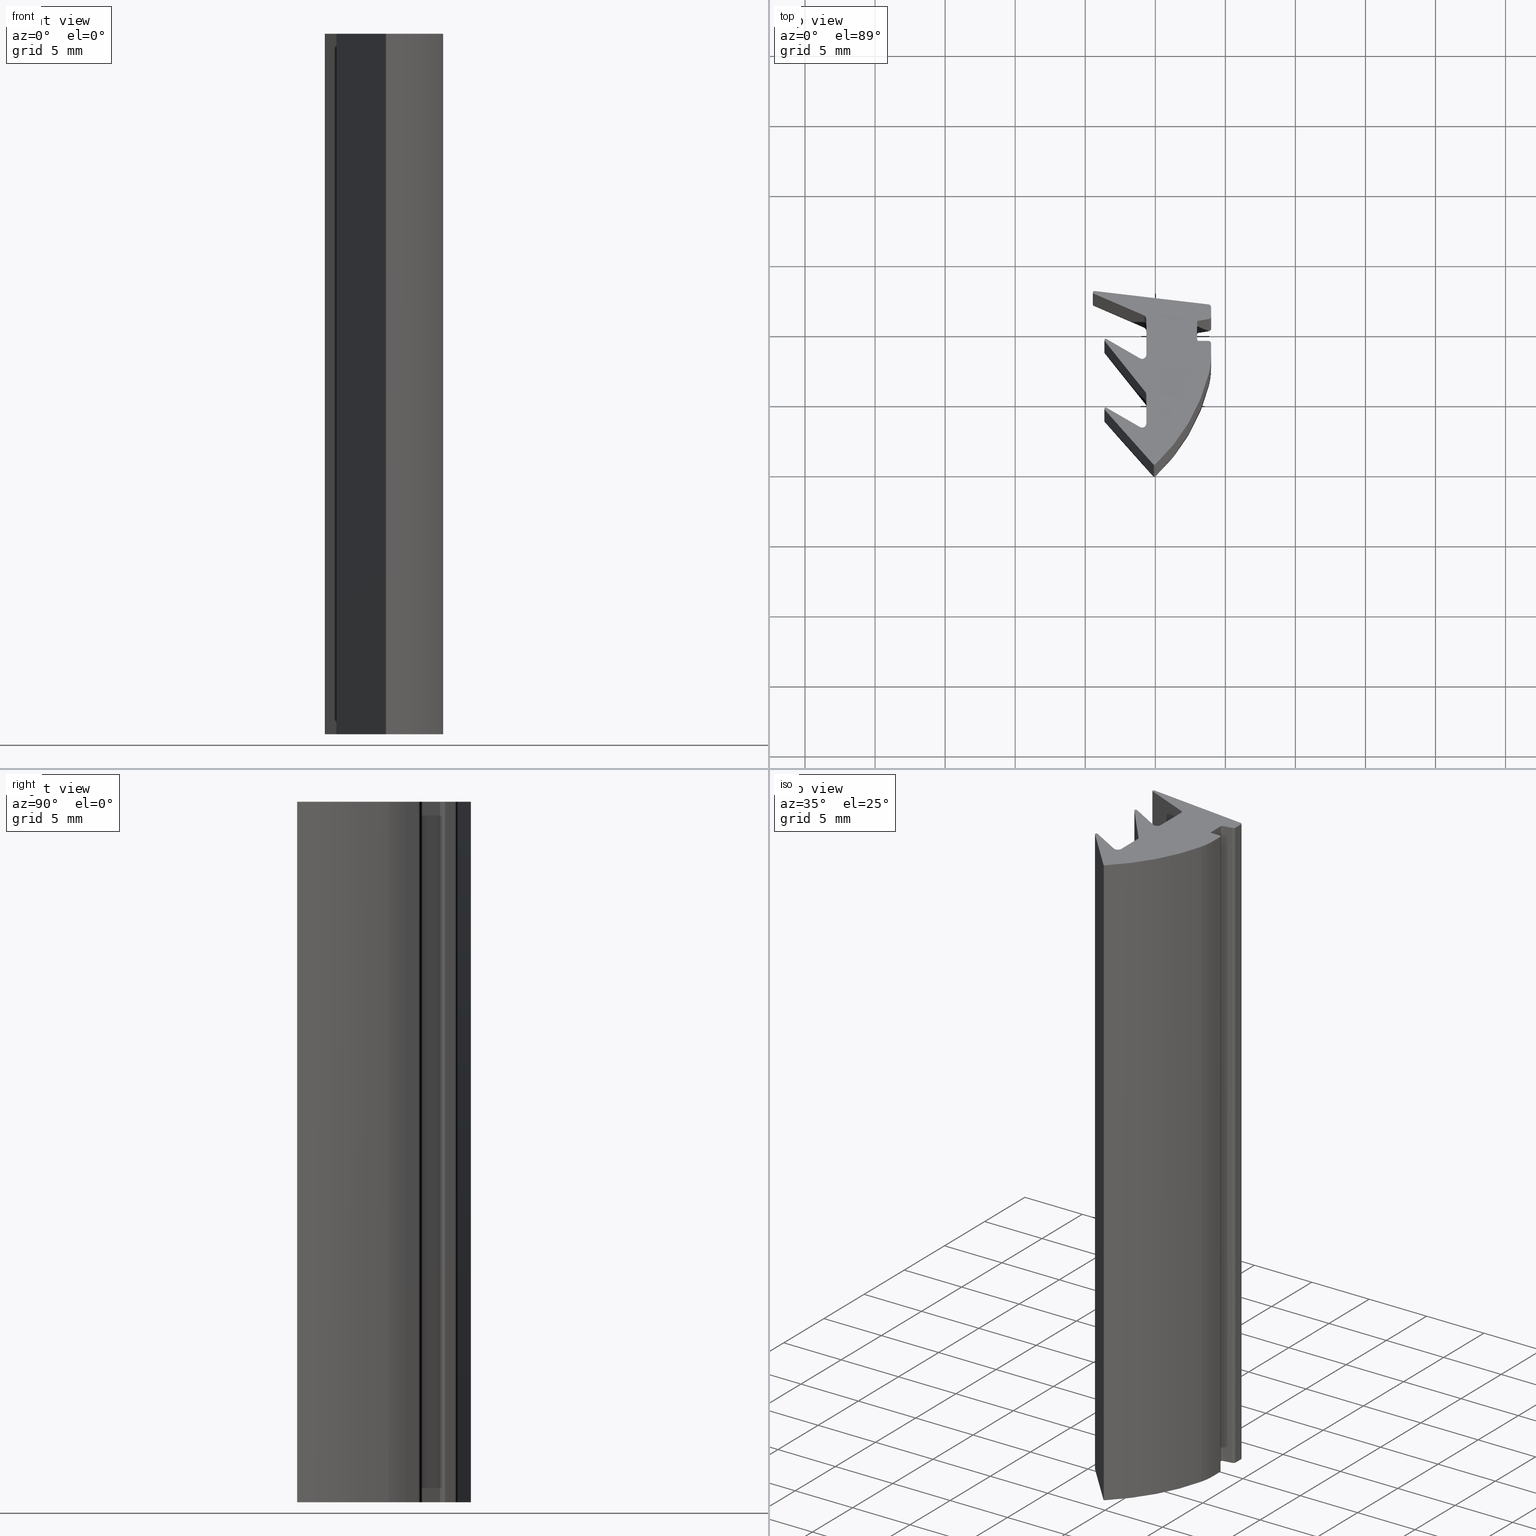
[diagram: canonical four-view strip — front | top / right | iso, engineering-drawing reading convention]
A machine part, canonical four-view strip (front | top / right | iso — engineering-drawing reading convention). The complete STEP part file that produces these views, byte-faithful:
ISO-10303-21;
HEADER;
/****************************************************************
 * Generated by software with PDE/Lib inside                    *
 * PDElib Version v4.4, created Mon 02/23/2004                  *
 * International Technegroup Inc. (www.iti-oh.com)              *
 ****************************************************************/
FILE_DESCRIPTION(('STEP AP203'),'2;1');
FILE_NAME('21.053.00N.stp','2011-03-21T16:06:39',(''),(''),'2009.3.110','THINKDESIGN','');
FILE_SCHEMA(('CONFIG_CONTROL_DESIGN'));
ENDSEC;
DATA;
#2=CARTESIAN_POINT('',(-0.068392333757039,0.072955388308102,0.0));
#3=DIRECTION('',(0.0,0.0,1.0));
#4=DIRECTION('',(-0.746680531136745,-0.665182820299313,0.0));
#5=AXIS2_PLACEMENT_3D('',#2,#3,#4);
#6=CYLINDRICAL_SURFACE('',#5,0.099999999999601);
#7=CARTESIAN_POINT('',(-0.143060386870415,0.006437106278437,0.0));
#8=VERTEX_POINT('',#7);
#9=CARTESIAN_POINT('',(0.0,0.0,0.0));
#10=VERTEX_POINT('',#9);
#11=CARTESIAN_POINT('',(-0.068392333757039,0.072955388308102,0.0));
#12=DIRECTION('',(0.0,0.0,1.0));
#13=DIRECTION('',(-0.746680531136745,-0.665182820299313,0.0));
#14=AXIS2_PLACEMENT_3D('',#11,#12,#13);
#15=CIRCLE('',#14,0.099999999999601);
#16=EDGE_CURVE('',#8,#10,#15,.T.);
#17=ORIENTED_EDGE('',*,*,#16,.T.);
#18=CARTESIAN_POINT('',(0.0,0.0,50.0));
#19=VERTEX_POINT('',#18);
#20=CARTESIAN_POINT('',(0.0,0.0,0.0));
#21=DIRECTION('',(0.0,0.0,1.0));
#22=VECTOR('',#21,50.0);
#23=LINE('',#20,#22);
#24=EDGE_CURVE('',#10,#19,#23,.T.);
#25=ORIENTED_EDGE('',*,*,#24,.T.);
#26=CARTESIAN_POINT('',(-0.143060386870415,0.006437106278437,50.0));
#27=VERTEX_POINT('',#26);
#28=CARTESIAN_POINT('',(-0.068392333757039,0.072955388308102,50.0));
#29=DIRECTION('',(0.0,0.0,1.0));
#30=DIRECTION('',(-0.746680531136745,-0.665182820299313,0.0));
#31=AXIS2_PLACEMENT_3D('',#28,#29,#30);
#32=CIRCLE('',#31,0.099999999999601);
#33=EDGE_CURVE('',#27,#19,#32,.T.);
#34=ORIENTED_EDGE('',*,*,#33,.F.);
#35=CARTESIAN_POINT('',(-0.143060386870415,0.006437106278437,0.0));
#36=DIRECTION('',(0.0,0.0,1.0));
#37=VECTOR('',#36,50.0);
#38=LINE('',#35,#37);
#39=EDGE_CURVE('',#8,#27,#38,.T.);
#40=ORIENTED_EDGE('',*,*,#39,.F.);
#41=EDGE_LOOP('',(#17,#25,#34,#40));
#42=FACE_OUTER_BOUND('',#41,.T.);
#43=ADVANCED_FACE('',(#42),#6,.T.);
#44=CARTESIAN_POINT('',(-9.162286141764792,9.773582893612812,0.0));
#45=DIRECTION('',(0.0,0.0,1.0));
#46=DIRECTION('',(0.683923337573304,-0.729553883083760,0.0));
#47=AXIS2_PLACEMENT_3D('',#44,#45,#46);
#48=CYLINDRICAL_SURFACE('',#47,13.396656669553645);
#49=CARTESIAN_POINT('',(3.824155342394557,6.483788447085610,0.0));
#50=VERTEX_POINT('',#49);
#51=CARTESIAN_POINT('',(-9.162286141764792,9.773582893612812,0.0));
#52=DIRECTION('',(0.0,0.0,1.0));
#53=DIRECTION('',(0.683923337573304,-0.729553883083760,0.0));
#54=AXIS2_PLACEMENT_3D('',#51,#52,#53);
#55=CIRCLE('',#54,13.396656669553645);
#56=EDGE_CURVE('',#10,#50,#55,.T.);
#57=ORIENTED_EDGE('',*,*,#56,.T.);
#58=CARTESIAN_POINT('',(3.824155342394557,6.483788447085610,50.0));
#59=VERTEX_POINT('',#58);
#60=CARTESIAN_POINT('',(3.824155342394557,6.483788447085610,0.0));
#61=DIRECTION('',(0.0,0.0,1.0));
#62=VECTOR('',#61,50.0);
#63=LINE('',#60,#62);
#64=EDGE_CURVE('',#50,#59,#63,.T.);
#65=ORIENTED_EDGE('',*,*,#64,.T.);
#66=CARTESIAN_POINT('',(-9.162286141764792,9.773582893612812,50.0));
#67=DIRECTION('',(0.0,0.0,1.0));
#68=DIRECTION('',(0.683923337573304,-0.729553883083760,0.0));
#69=AXIS2_PLACEMENT_3D('',#66,#67,#68);
#70=CIRCLE('',#69,13.396656669553645);
#71=EDGE_CURVE('',#19,#59,#70,.T.);
#72=ORIENTED_EDGE('',*,*,#71,.F.);
#73=ORIENTED_EDGE('',*,*,#24,.F.);
#74=EDGE_LOOP('',(#57,#65,#72,#73));
#75=FACE_OUTER_BOUND('',#74,.T.);
#76=ADVANCED_FACE('',(#75),#48,.T.);
#77=CARTESIAN_POINT('',(-1.155222494464720,7.745190931734269,0.0));
#78=DIRECTION('',(0.0,0.0,1.0));
#79=DIRECTION('',(0.969379286525517,-0.245568318101663,0.0));
#80=AXIS2_PLACEMENT_3D('',#77,#78,#79);
#81=CYLINDRICAL_SURFACE('',#80,5.136666221440048);
#82=CARTESIAN_POINT('',(3.981443726975328,7.745190931734234,0.0));
#83=VERTEX_POINT('',#82);
#84=CARTESIAN_POINT('',(-1.155222494464720,7.745190931734270,0.0));
#85=DIRECTION('',(0.0,0.0,1.0));
#86=DIRECTION('',(0.969379286525517,-0.245568318101663,0.0));
#87=AXIS2_PLACEMENT_3D('',#84,#85,#86);
#88=CIRCLE('',#87,5.136666221440048);
#89=EDGE_CURVE('',#50,#83,#88,.T.);
#90=ORIENTED_EDGE('',*,*,#89,.T.);
#91=CARTESIAN_POINT('',(3.981443726975328,7.745190931734234,50.0));
#92=VERTEX_POINT('',#91);
#93=CARTESIAN_POINT('',(3.981443726975328,7.745190931734234,0.0));
#94=DIRECTION('',(0.0,0.0,1.0));
#95=VECTOR('',#94,50.0);
#96=LINE('',#93,#95);
#97=EDGE_CURVE('',#83,#92,#96,.T.);
#98=ORIENTED_EDGE('',*,*,#97,.T.);
#99=CARTESIAN_POINT('',(-1.155222494464720,7.745190931734270,50.0));
#100=DIRECTION('',(0.0,0.0,1.0));
#101=DIRECTION('',(0.969379286525517,-0.245568318101663,0.0));
#102=AXIS2_PLACEMENT_3D('',#99,#100,#101);
#103=CIRCLE('',#102,5.136666221440048);
#104=EDGE_CURVE('',#59,#92,#103,.T.);
#105=ORIENTED_EDGE('',*,*,#104,.F.);
#106=ORIENTED_EDGE('',*,*,#64,.F.);
#107=EDGE_LOOP('',(#90,#98,#105,#106));
#108=FACE_OUTER_BOUND('',#107,.T.);
#109=ADVANCED_FACE('',(#108),#81,.T.);
#110=CARTESIAN_POINT('',(3.981443726975328,7.745190931734234,0.0));
#111=DIRECTION('',(1.0,0.0,0.0));
#112=DIRECTION('',(0.0,1.0,0.0));
#113=AXIS2_PLACEMENT_3D('',#110,#111,#112);
#114=PLANE('',#113);
#115=CARTESIAN_POINT('',(3.981443726975328,8.621382036563954,0.0));
#116=VERTEX_POINT('',#115);
#117=CARTESIAN_POINT('',(3.981443726975328,7.745190931734234,0.0));
#118=DIRECTION('',(0.0,1.0,0.0));
#119=VECTOR('',#118,0.876191104829720);
#120=LINE('',#117,#119);
#121=EDGE_CURVE('',#83,#116,#120,.T.);
#122=ORIENTED_EDGE('',*,*,#121,.T.);
#123=CARTESIAN_POINT('',(3.981443726975328,8.621382036563954,50.0));
#124=VERTEX_POINT('',#123);
#125=CARTESIAN_POINT('',(3.981443726975328,8.621382036563954,0.0));
#126=DIRECTION('',(0.0,0.0,1.0));
#127=VECTOR('',#126,50.0);
#128=LINE('',#125,#127);
#129=EDGE_CURVE('',#116,#124,#128,.T.);
#130=ORIENTED_EDGE('',*,*,#129,.T.);
#131=CARTESIAN_POINT('',(3.981443726975328,7.745190931734234,50.0));
#132=DIRECTION('',(0.0,1.0,0.0));
#133=VECTOR('',#132,0.876191104829720);
#134=LINE('',#131,#133);
#135=EDGE_CURVE('',#92,#124,#134,.T.);
#136=ORIENTED_EDGE('',*,*,#135,.F.);
#137=ORIENTED_EDGE('',*,*,#97,.F.);
#138=EDGE_LOOP('',(#122,#130,#136,#137));
#139=FACE_OUTER_BOUND('',#138,.T.);
#140=ADVANCED_FACE('',(#139),#114,.T.);
#141=CARTESIAN_POINT('',(3.781443726976129,8.621382036563954,0.0));
#142=DIRECTION('',(0.0,0.0,1.0));
#143=DIRECTION('',(1.0,0.0,0.0));
#144=AXIS2_PLACEMENT_3D('',#141,#142,#143);
#145=CYLINDRICAL_SURFACE('',#144,0.199999999999199);
#146=CARTESIAN_POINT('',(3.781443726976127,8.821382036563154,0.0));
#147=VERTEX_POINT('',#146);
#148=CARTESIAN_POINT('',(3.781443726976129,8.621382036563954,0.0));
#149=DIRECTION('',(0.0,0.0,1.0));
#150=DIRECTION('',(1.0,0.0,0.0));
#151=AXIS2_PLACEMENT_3D('',#148,#149,#150);
#152=CIRCLE('',#151,0.199999999999199);
#153=EDGE_CURVE('',#116,#147,#152,.T.);
#154=ORIENTED_EDGE('',*,*,#153,.T.);
#155=CARTESIAN_POINT('',(3.781443726976127,8.821382036563154,50.0));
#156=VERTEX_POINT('',#155);
#157=CARTESIAN_POINT('',(3.781443726976127,8.821382036563154,0.0));
#158=DIRECTION('',(0.0,0.0,1.0));
#159=VECTOR('',#158,50.0);
#160=LINE('',#157,#159);
#161=EDGE_CURVE('',#147,#156,#160,.T.);
#162=ORIENTED_EDGE('',*,*,#161,.T.);
#163=CARTESIAN_POINT('',(3.781443726976129,8.621382036563954,50.0));
#164=DIRECTION('',(0.0,0.0,1.0));
#165=DIRECTION('',(1.0,0.0,0.0));
#166=AXIS2_PLACEMENT_3D('',#163,#164,#165);
#167=CIRCLE('',#166,0.199999999999199);
#168=EDGE_CURVE('',#124,#156,#167,.T.);
#169=ORIENTED_EDGE('',*,*,#168,.F.);
#170=ORIENTED_EDGE('',*,*,#129,.F.);
#171=EDGE_LOOP('',(#154,#162,#169,#170));
#172=FACE_OUTER_BOUND('',#171,.T.);
#173=ADVANCED_FACE('',(#172),#145,.T.);
#174=CARTESIAN_POINT('',(3.781443726976127,8.821382036563154,0.0));
#175=DIRECTION('',(0.0,1.0,0.0));
#176=DIRECTION('',(-1.0,0.0,0.0));
#177=AXIS2_PLACEMENT_3D('',#174,#175,#176);
#178=PLANE('',#177);
#179=CARTESIAN_POINT('',(3.087680067649842,8.821382036563154,0.0));
#180=VERTEX_POINT('',#179);
#181=CARTESIAN_POINT('',(3.781443726976127,8.821382036563154,0.0));
#182=DIRECTION('',(-1.0,0.0,0.0));
#183=VECTOR('',#182,0.693763659326284);
#184=LINE('',#181,#183);
#185=EDGE_CURVE('',#147,#180,#184,.T.);
#186=ORIENTED_EDGE('',*,*,#185,.T.);
#187=CARTESIAN_POINT('',(3.087680067649842,8.821382036563154,50.0));
#188=VERTEX_POINT('',#187);
#189=CARTESIAN_POINT('',(3.087680067649842,8.821382036563154,0.0));
#190=DIRECTION('',(0.0,0.0,1.0));
#191=VECTOR('',#190,50.0);
#192=LINE('',#189,#191);
#193=EDGE_CURVE('',#180,#188,#192,.T.);
#194=ORIENTED_EDGE('',*,*,#193,.T.);
#195=CARTESIAN_POINT('',(3.781443726976127,8.821382036563154,50.0));
#196=DIRECTION('',(-1.0,0.0,0.0));
#197=VECTOR('',#196,0.693763659326284);
#198=LINE('',#195,#197);
#199=EDGE_CURVE('',#156,#188,#198,.T.);
#200=ORIENTED_EDGE('',*,*,#199,.F.);
#201=ORIENTED_EDGE('',*,*,#161,.F.);
#202=EDGE_LOOP('',(#186,#194,#200,#201));
#203=FACE_OUTER_BOUND('',#202,.T.);
#204=ADVANCED_FACE('',(#203),#178,.T.);
#205=CARTESIAN_POINT('',(3.087680067649842,8.921382036562754,0.0));
#206=DIRECTION('',(0.0,0.0,-1.0));
#207=DIRECTION('',(-6.123234E-017,-1.0,0.0));
#208=AXIS2_PLACEMENT_3D('',#205,#206,#207);
#209=CYLINDRICAL_SURFACE('',#208,0.099999999999601);
#210=CARTESIAN_POINT('',(2.987680067650241,8.921382036562754,0.0));
#211=VERTEX_POINT('',#210);
#212=CARTESIAN_POINT('',(3.087680067649842,8.921382036562754,0.0));
#213=DIRECTION('',(0.0,0.0,-1.0));
#214=DIRECTION('',(-1.0,0.0,0.0));
#215=AXIS2_PLACEMENT_3D('',#212,#213,#214);
#216=CIRCLE('',#215,0.099999999999601);
#217=EDGE_CURVE('',#180,#211,#216,.T.);
#218=ORIENTED_EDGE('',*,*,#217,.T.);
#219=CARTESIAN_POINT('',(2.987680067650241,8.921382036562754,50.0));
#220=VERTEX_POINT('',#219);
#221=CARTESIAN_POINT('',(2.987680067650241,8.921382036562754,0.0));
#222=DIRECTION('',(0.0,0.0,1.0));
#223=VECTOR('',#222,50.0);
#224=LINE('',#221,#223);
#225=EDGE_CURVE('',#211,#220,#224,.T.);
#226=ORIENTED_EDGE('',*,*,#225,.T.);
#227=CARTESIAN_POINT('',(3.087680067649842,8.921382036562754,50.0));
#228=DIRECTION('',(0.0,0.0,-1.0));
#229=DIRECTION('',(-1.0,0.0,0.0));
#230=AXIS2_PLACEMENT_3D('',#227,#228,#229);
#231=CIRCLE('',#230,0.099999999999601);
#232=EDGE_CURVE('',#188,#220,#231,.T.);
#233=ORIENTED_EDGE('',*,*,#232,.F.);
#234=ORIENTED_EDGE('',*,*,#193,.F.);
#235=EDGE_LOOP('',(#218,#226,#233,#234));
#236=FACE_OUTER_BOUND('',#235,.T.);
#237=ADVANCED_FACE('',(#236),#209,.F.);
#238=CARTESIAN_POINT('',(2.987680067650241,8.921382036562754,0.0));
#239=DIRECTION('',(1.0,0.0,0.0));
#240=DIRECTION('',(0.0,1.0,0.0));
#241=AXIS2_PLACEMENT_3D('',#238,#239,#240);
#242=PLANE('',#241);
#243=CARTESIAN_POINT('',(2.987680067650241,10.156344474462855,0.0));
#244=VERTEX_POINT('',#243);
#245=CARTESIAN_POINT('',(2.987680067650241,8.921382036562754,0.0));
#246=DIRECTION('',(0.0,1.0,0.0));
#247=VECTOR('',#246,1.234962437900101);
#248=LINE('',#245,#247);
#249=EDGE_CURVE('',#211,#244,#248,.T.);
#250=ORIENTED_EDGE('',*,*,#249,.T.);
#251=CARTESIAN_POINT('',(2.987680067650241,10.156344474462855,50.0));
#252=VERTEX_POINT('',#251);
#253=CARTESIAN_POINT('',(2.987680067650241,10.156344474462855,0.0));
#254=DIRECTION('',(0.0,0.0,1.0));
#255=VECTOR('',#254,50.0);
#256=LINE('',#253,#255);
#257=EDGE_CURVE('',#244,#252,#256,.T.);
#258=ORIENTED_EDGE('',*,*,#257,.T.);
#259=CARTESIAN_POINT('',(2.987680067650241,8.921382036562754,50.0));
#260=DIRECTION('',(0.0,1.0,0.0));
#261=VECTOR('',#260,1.234962437900101);
#262=LINE('',#259,#261);
#263=EDGE_CURVE('',#220,#252,#262,.T.);
#264=ORIENTED_EDGE('',*,*,#263,.F.);
#265=ORIENTED_EDGE('',*,*,#225,.F.);
#266=EDGE_LOOP('',(#250,#258,#264,#265));
#267=FACE_OUTER_BOUND('',#266,.T.);
#268=ADVANCED_FACE('',(#267),#242,.T.);
#269=CARTESIAN_POINT('',(3.087680067649841,10.156344474462855,0.0));
#270=DIRECTION('',(0.0,0.0,-1.0));
#271=DIRECTION('',(-1.0,-8.326673E-017,0.0));
#272=AXIS2_PLACEMENT_3D('',#269,#270,#271);
#273=CYLINDRICAL_SURFACE('',#272,0.099999999999600);
#274=CARTESIAN_POINT('',(3.071935292356531,10.255097206328273,0.0));
#275=VERTEX_POINT('',#274);
#276=CARTESIAN_POINT('',(3.087680067649840,10.156344474462857,0.0));
#277=DIRECTION('',(0.0,0.0,-1.0));
#278=DIRECTION('',(-0.157447752933724,0.987527318658133,0.0));
#279=AXIS2_PLACEMENT_3D('',#276,#277,#278);
#280=CIRCLE('',#279,0.099999999999600);
#281=EDGE_CURVE('',#244,#275,#280,.T.);
#282=ORIENTED_EDGE('',*,*,#281,.T.);
#283=CARTESIAN_POINT('',(3.071935292356531,10.255097206328273,50.0));
#284=VERTEX_POINT('',#283);
#285=CARTESIAN_POINT('',(3.071935292356531,10.255097206328273,0.0));
#286=DIRECTION('',(0.0,0.0,1.0));
#287=VECTOR('',#286,50.0);
#288=LINE('',#285,#287);
#289=EDGE_CURVE('',#275,#284,#288,.T.);
#290=ORIENTED_EDGE('',*,*,#289,.T.);
#291=CARTESIAN_POINT('',(3.087680067649840,10.156344474462857,50.0));
#292=DIRECTION('',(0.0,0.0,-1.0));
#293=DIRECTION('',(-0.157447752933724,0.987527318658133,0.0));
#294=AXIS2_PLACEMENT_3D('',#291,#292,#293);
#295=CIRCLE('',#294,0.099999999999600);
#296=EDGE_CURVE('',#252,#284,#295,.T.);
#297=ORIENTED_EDGE('',*,*,#296,.F.);
#298=ORIENTED_EDGE('',*,*,#257,.F.);
#299=EDGE_LOOP('',(#282,#290,#297,#298));
#300=FACE_OUTER_BOUND('',#299,.T.);
#301=ADVANCED_FACE('',(#300),#273,.F.);
#302=CARTESIAN_POINT('',(3.071935292356531,10.255097206328273,0.0));
#303=DIRECTION('',(0.157447752933771,-0.987527318658125,0.0));
#304=DIRECTION('',(0.987527318658125,0.157447752933771,0.0));
#305=AXIS2_PLACEMENT_3D('',#302,#303,#304);
#306=PLANE('',#305);
#307=CARTESIAN_POINT('',(3.812933277562766,10.373239221738748,0.0));
#308=VERTEX_POINT('',#307);
#309=CARTESIAN_POINT('',(3.071935292356531,10.255097206328273,0.0));
#310=DIRECTION('',(0.987527318658125,0.157447752933771,0.0));
#311=VECTOR('',#310,0.750356948315232);
#312=LINE('',#309,#311);
#313=EDGE_CURVE('',#275,#308,#312,.T.);
#314=ORIENTED_EDGE('',*,*,#313,.T.);
#315=CARTESIAN_POINT('',(3.812933277562766,10.373239221738748,50.0));
#316=VERTEX_POINT('',#315);
#317=CARTESIAN_POINT('',(3.812933277562766,10.373239221738748,0.0));
#318=DIRECTION('',(0.0,0.0,1.0));
#319=VECTOR('',#318,50.0);
#320=LINE('',#317,#319);
#321=EDGE_CURVE('',#308,#316,#320,.T.);
#322=ORIENTED_EDGE('',*,*,#321,.T.);
#323=CARTESIAN_POINT('',(3.071935292356531,10.255097206328273,50.0));
#324=DIRECTION('',(0.987527318658125,0.157447752933771,0.0));
#325=VECTOR('',#324,0.750356948315232);
#326=LINE('',#323,#325);
#327=EDGE_CURVE('',#284,#316,#326,.T.);
#328=ORIENTED_EDGE('',*,*,#327,.F.);
#329=ORIENTED_EDGE('',*,*,#289,.F.);
#330=EDGE_LOOP('',(#314,#322,#328,#329));
#331=FACE_OUTER_BOUND('',#330,.T.);
#332=ADVANCED_FACE('',(#331),#306,.T.);
#333=CARTESIAN_POINT('',(3.781443726976137,10.570744685469583,0.0));
#334=DIRECTION('',(0.0,0.0,1.0));
#335=DIRECTION('',(0.157447752933773,-0.987527318658125,0.0));
#336=AXIS2_PLACEMENT_3D('',#333,#334,#335);
#337=CYLINDRICAL_SURFACE('',#336,0.199999999999198);
#338=CARTESIAN_POINT('',(3.981443726975336,10.570744685469583,0.0));
#339=VERTEX_POINT('',#338);
#340=CARTESIAN_POINT('',(3.781443726976137,10.570744685469581,0.0));
#341=DIRECTION('',(0.0,0.0,1.0));
#342=DIRECTION('',(0.157447752933773,-0.987527318658125,0.0));
#343=AXIS2_PLACEMENT_3D('',#340,#341,#342);
#344=CIRCLE('',#343,0.199999999999198);
#345=EDGE_CURVE('',#308,#339,#344,.T.);
#346=ORIENTED_EDGE('',*,*,#345,.T.);
#347=CARTESIAN_POINT('',(3.981443726975336,10.570744685469583,50.0));
#348=VERTEX_POINT('',#347);
#349=CARTESIAN_POINT('',(3.981443726975336,10.570744685469583,0.0));
#350=DIRECTION('',(0.0,0.0,1.0));
#351=VECTOR('',#350,50.0);
#352=LINE('',#349,#351);
#353=EDGE_CURVE('',#339,#348,#352,.T.);
#354=ORIENTED_EDGE('',*,*,#353,.T.);
#355=CARTESIAN_POINT('',(3.781443726976137,10.570744685469581,50.0));
#356=DIRECTION('',(0.0,0.0,1.0));
#357=DIRECTION('',(0.157447752933773,-0.987527318658125,0.0));
#358=AXIS2_PLACEMENT_3D('',#355,#356,#357);
#359=CIRCLE('',#358,0.199999999999198);
#360=EDGE_CURVE('',#316,#348,#359,.T.);
#361=ORIENTED_EDGE('',*,*,#360,.F.);
#362=ORIENTED_EDGE('',*,*,#321,.F.);
#363=EDGE_LOOP('',(#346,#354,#361,#362));
#364=FACE_OUTER_BOUND('',#363,.T.);
#365=ADVANCED_FACE('',(#364),#337,.T.);
#366=CARTESIAN_POINT('',(3.981443726975336,10.570744685469583,0.0));
#367=DIRECTION('',(1.0,0.0,0.0));
#368=DIRECTION('',(0.0,1.0,0.0));
#369=AXIS2_PLACEMENT_3D('',#366,#367,#368);
#370=PLANE('',#369);
#371=CARTESIAN_POINT('',(3.981443726975336,11.222236276599347,0.0));
#372=VERTEX_POINT('',#371);
#373=CARTESIAN_POINT('',(3.981443726975336,10.570744685469583,0.0));
#374=DIRECTION('',(0.0,1.0,0.0));
#375=VECTOR('',#374,0.651491591129764);
#376=LINE('',#373,#375);
#377=EDGE_CURVE('',#339,#372,#376,.T.);
#378=ORIENTED_EDGE('',*,*,#377,.T.);
#379=CARTESIAN_POINT('',(3.981443726975336,11.222236276599347,50.0));
#380=VERTEX_POINT('',#379);
#381=CARTESIAN_POINT('',(3.981443726975336,11.222236276599347,0.0));
#382=DIRECTION('',(0.0,0.0,1.0));
#383=VECTOR('',#382,50.0);
#384=LINE('',#381,#383);
#385=EDGE_CURVE('',#372,#380,#384,.T.);
#386=ORIENTED_EDGE('',*,*,#385,.T.);
#387=CARTESIAN_POINT('',(3.981443726975336,10.570744685469583,50.0));
#388=DIRECTION('',(0.0,1.0,0.0));
#389=VECTOR('',#388,0.651491591129764);
#390=LINE('',#387,#389);
#391=EDGE_CURVE('',#348,#380,#390,.T.);
#392=ORIENTED_EDGE('',*,*,#391,.F.);
#393=ORIENTED_EDGE('',*,*,#353,.F.);
#394=EDGE_LOOP('',(#378,#386,#392,#393));
#395=FACE_OUTER_BOUND('',#394,.T.);
#396=ADVANCED_FACE('',(#395),#370,.T.);
#397=CARTESIAN_POINT('',(3.781443726976316,11.222236276598759,0.0));
#398=DIRECTION('',(0.0,0.0,1.0));
#399=DIRECTION('',(1.0,2.939315E-012,0.0));
#400=AXIS2_PLACEMENT_3D('',#397,#398,#399);
#401=CYLINDRICAL_SURFACE('',#400,0.199999999999020);
#402=CARTESIAN_POINT('',(3.804790102501636,11.420868969651821,0.0));
#403=VERTEX_POINT('',#402);
#404=CARTESIAN_POINT('',(3.781443726976316,11.222236276598759,0.0));
#405=DIRECTION('',(0.0,0.0,1.0));
#406=DIRECTION('',(1.0,2.939315E-012,0.0));
#407=AXIS2_PLACEMENT_3D('',#404,#405,#406);
#408=CIRCLE('',#407,0.199999999999020);
#409=EDGE_CURVE('',#372,#403,#408,.T.);
#410=ORIENTED_EDGE('',*,*,#409,.T.);
#411=CARTESIAN_POINT('',(3.804790102501636,11.420868969651821,50.0));
#412=VERTEX_POINT('',#411);
#413=CARTESIAN_POINT('',(3.804790102501636,11.420868969651821,0.0));
#414=DIRECTION('',(0.0,0.0,1.0));
#415=VECTOR('',#414,50.0);
#416=LINE('',#413,#415);
#417=EDGE_CURVE('',#403,#412,#416,.T.);
#418=ORIENTED_EDGE('',*,*,#417,.T.);
#419=CARTESIAN_POINT('',(3.781443726976316,11.222236276598759,50.0));
#420=DIRECTION('',(0.0,0.0,1.0));
#421=DIRECTION('',(1.0,2.939315E-012,0.0));
#422=AXIS2_PLACEMENT_3D('',#419,#420,#421);
#423=CIRCLE('',#422,0.199999999999020);
#424=EDGE_CURVE('',#380,#412,#423,.T.);
#425=ORIENTED_EDGE('',*,*,#424,.F.);
#426=ORIENTED_EDGE('',*,*,#385,.F.);
#427=EDGE_LOOP('',(#410,#418,#425,#426));
#428=FACE_OUTER_BOUND('',#427,.T.);
#429=ADVANCED_FACE('',(#428),#401,.T.);
#430=CARTESIAN_POINT('',(3.804790102501636,11.420868969651821,0.0));
#431=DIRECTION('',(0.116731877628659,0.993163465269080,0.0));
#432=DIRECTION('',(-0.993163465269080,0.116731877628659,0.0));
#433=AXIS2_PLACEMENT_3D('',#430,#431,#432);
#434=PLANE('',#433);
#435=CARTESIAN_POINT('',(-4.340037276570009,12.378174615870938,0.0));
#436=VERTEX_POINT('',#435);
#437=CARTESIAN_POINT('',(3.804790102501636,11.420868969651821,0.0));
#438=DIRECTION('',(-0.993163465269080,0.116731877628660,0.0));
#439=VECTOR('',#438,8.200893069364888);
#440=LINE('',#437,#439);
#441=EDGE_CURVE('',#403,#436,#440,.T.);
#442=ORIENTED_EDGE('',*,*,#441,.T.);
#443=CARTESIAN_POINT('',(-4.340037276570009,12.378174615870938,50.0));
#444=VERTEX_POINT('',#443);
#445=CARTESIAN_POINT('',(-4.340037276570009,12.378174615870938,0.0));
#446=DIRECTION('',(0.0,0.0,1.0));
#447=VECTOR('',#446,50.0);
#448=LINE('',#445,#447);
#449=EDGE_CURVE('',#436,#444,#448,.T.);
#450=ORIENTED_EDGE('',*,*,#449,.T.);
#451=CARTESIAN_POINT('',(3.804790102501636,11.420868969651821,50.0));
#452=DIRECTION('',(-0.993163465269080,0.116731877628660,0.0));
#453=VECTOR('',#452,8.200893069364888);
#454=LINE('',#451,#453);
#455=EDGE_CURVE('',#412,#444,#454,.T.);
#456=ORIENTED_EDGE('',*,*,#455,.F.);
#457=ORIENTED_EDGE('',*,*,#417,.F.);
#458=EDGE_LOOP('',(#442,#450,#456,#457));
#459=FACE_OUTER_BOUND('',#458,.T.);
#460=ADVANCED_FACE('',(#459),#434,.T.);
#461=CARTESIAN_POINT('',(-4.351710464332830,12.278858269344429,0.0));
#462=DIRECTION('',(0.0,0.0,1.0));
#463=DIRECTION('',(0.116731877628673,0.993163465269079,0.0));
#464=AXIS2_PLACEMENT_3D('',#461,#462,#463);
#465=CYLINDRICAL_SURFACE('',#464,0.099999999999598);
#466=CARTESIAN_POINT('',(-4.391358417761976,12.187053913299632,0.0));
#467=VERTEX_POINT('',#466);
#468=CARTESIAN_POINT('',(-4.351710464332831,12.278858269344431,0.0));
#469=DIRECTION('',(0.0,0.0,1.000000000000000));
#470=DIRECTION('',(0.116731877628673,0.993163465269079,0.0));
#471=AXIS2_PLACEMENT_3D('',#468,#469,#470);
#472=CIRCLE('',#471,0.099999999999598);
#473=EDGE_CURVE('',#436,#467,#472,.T.);
#474=ORIENTED_EDGE('',*,*,#473,.T.);
#475=CARTESIAN_POINT('',(-4.391358417761976,12.187053913299632,50.0));
#476=VERTEX_POINT('',#475);
#477=CARTESIAN_POINT('',(-4.391358417761976,12.187053913299632,0.0));
#478=DIRECTION('',(0.0,0.0,1.0));
#479=VECTOR('',#478,50.0);
#480=LINE('',#477,#479);
#481=EDGE_CURVE('',#467,#476,#480,.T.);
#482=ORIENTED_EDGE('',*,*,#481,.T.);
#483=CARTESIAN_POINT('',(-4.351710464332831,12.278858269344431,50.000000000000028));
#484=DIRECTION('',(0.0,0.0,1.000000000000000));
#485=DIRECTION('',(0.116731877628673,0.993163465269079,0.0));
#486=AXIS2_PLACEMENT_3D('',#483,#484,#485);
#487=CIRCLE('',#486,0.099999999999598);
#488=EDGE_CURVE('',#444,#476,#487,.T.);
#489=ORIENTED_EDGE('',*,*,#488,.F.);
#490=ORIENTED_EDGE('',*,*,#449,.F.);
#491=EDGE_LOOP('',(#474,#482,#489,#490));
#492=FACE_OUTER_BOUND('',#491,.T.);
#493=ADVANCED_FACE('',(#492),#465,.T.);
#494=CARTESIAN_POINT('',(-4.391358417761976,12.187053913299632,0.0));
#495=DIRECTION('',(-0.396479534293032,-0.918043560451671,0.0));
#496=DIRECTION('',(0.918043560451671,-0.396479534293032,0.0));
#497=AXIS2_PLACEMENT_3D('',#494,#495,#496);
#498=PLANE('',#497);
#499=CARTESIAN_POINT('',(-0.821445049704808,10.645299632122157,0.0));
#500=VERTEX_POINT('',#499);
#501=CARTESIAN_POINT('',(-4.391358417761976,12.187053913299632,0.0));
#502=DIRECTION('',(0.918043560451671,-0.396479534293032,0.0));
#503=VECTOR('',#502,3.888609998310753);
#504=LINE('',#501,#503);
#505=EDGE_CURVE('',#467,#500,#504,.T.);
#506=ORIENTED_EDGE('',*,*,#505,.T.);
#507=CARTESIAN_POINT('',(-0.821445049704808,10.645299632122157,50.0));
#508=VERTEX_POINT('',#507);
#509=CARTESIAN_POINT('',(-0.821445049704808,10.645299632122157,0.0));
#510=DIRECTION('',(0.0,0.0,1.0));
#511=VECTOR('',#510,50.0);
#512=LINE('',#509,#511);
#513=EDGE_CURVE('',#500,#508,#512,.T.);
#514=ORIENTED_EDGE('',*,*,#513,.T.);
#515=CARTESIAN_POINT('',(-4.391358417761976,12.187053913299632,50.0));
#516=DIRECTION('',(0.918043560451671,-0.396479534293032,0.0));
#517=VECTOR('',#516,3.888609998310753);
#518=LINE('',#515,#517);
#519=EDGE_CURVE('',#476,#508,#518,.T.);
#520=ORIENTED_EDGE('',*,*,#519,.F.);
#521=ORIENTED_EDGE('',*,*,#481,.F.);
#522=EDGE_LOOP('',(#506,#514,#520,#521));
#523=FACE_OUTER_BOUND('',#522,.T.);
#524=ADVANCED_FACE('',(#523),#498,.T.);
#525=CARTESIAN_POINT('',(-0.940388909992237,10.369886563987755,0.0));
#526=DIRECTION('',(0.0,0.0,-1.0));
#527=DIRECTION('',(0.396479534293014,0.918043560451678,0.0));
#528=AXIS2_PLACEMENT_3D('',#525,#526,#527);
#529=CYLINDRICAL_SURFACE('',#528,0.299999999998800);
#530=CARTESIAN_POINT('',(-0.640388909993436,10.369886563987755,0.0));
#531=VERTEX_POINT('',#530);
#532=CARTESIAN_POINT('',(-0.940388909992237,10.369886563987755,0.0));
#533=DIRECTION('',(0.0,0.0,-1.0));
#534=DIRECTION('',(1.0,0.0,0.0));
#535=AXIS2_PLACEMENT_3D('',#532,#533,#534);
#536=CIRCLE('',#535,0.299999999998800);
#537=EDGE_CURVE('',#500,#531,#536,.T.);
#538=ORIENTED_EDGE('',*,*,#537,.T.);
#539=CARTESIAN_POINT('',(-0.640388909993436,10.369886563987755,50.0));
#540=VERTEX_POINT('',#539);
#541=CARTESIAN_POINT('',(-0.640388909993436,10.369886563987755,0.0));
#542=DIRECTION('',(0.0,0.0,1.0));
#543=VECTOR('',#542,50.0);
#544=LINE('',#541,#543);
#545=EDGE_CURVE('',#531,#540,#544,.T.);
#546=ORIENTED_EDGE('',*,*,#545,.T.);
#547=CARTESIAN_POINT('',(-0.940388909992237,10.369886563987755,50.0));
#548=DIRECTION('',(0.0,0.0,-1.0));
#549=DIRECTION('',(1.0,0.0,0.0));
#550=AXIS2_PLACEMENT_3D('',#547,#548,#549);
#551=CIRCLE('',#550,0.299999999998800);
#552=EDGE_CURVE('',#508,#540,#551,.T.);
#553=ORIENTED_EDGE('',*,*,#552,.F.);
#554=ORIENTED_EDGE('',*,*,#513,.F.);
#555=EDGE_LOOP('',(#538,#546,#553,#554));
#556=FACE_OUTER_BOUND('',#555,.T.);
#557=ADVANCED_FACE('',(#556),#529,.F.);
#558=CARTESIAN_POINT('',(-0.640388909993436,10.369886563987755,0.0));
#559=DIRECTION('',(-1.0,0.0,0.0));
#560=DIRECTION('',(0.0,-1.0,0.0));
#561=AXIS2_PLACEMENT_3D('',#558,#559,#560);
#562=PLANE('',#561);
#563=CARTESIAN_POINT('',(-0.640388909993436,7.830457434995225,0.0));
#564=VERTEX_POINT('',#563);
#565=CARTESIAN_POINT('',(-0.640388909993436,10.369886563987755,0.0));
#566=DIRECTION('',(0.0,-1.0,0.0));
#567=VECTOR('',#566,2.539429128992531);
#568=LINE('',#565,#567);
#569=EDGE_CURVE('',#531,#564,#568,.T.);
#570=ORIENTED_EDGE('',*,*,#569,.T.);
#571=CARTESIAN_POINT('',(-0.640388909993436,7.830457434995225,50.0));
#572=VERTEX_POINT('',#571);
#573=CARTESIAN_POINT('',(-0.640388909993436,7.830457434995225,0.0));
#574=DIRECTION('',(0.0,0.0,1.0));
#575=VECTOR('',#574,50.0);
#576=LINE('',#573,#575);
#577=EDGE_CURVE('',#564,#572,#576,.T.);
#578=ORIENTED_EDGE('',*,*,#577,.T.);
#579=CARTESIAN_POINT('',(-0.640388909993436,10.369886563987755,50.0));
#580=DIRECTION('',(0.0,-1.0,0.0));
#581=VECTOR('',#580,2.539429128992531);
#582=LINE('',#579,#581);
#583=EDGE_CURVE('',#540,#572,#582,.T.);
#584=ORIENTED_EDGE('',*,*,#583,.F.);
#585=ORIENTED_EDGE('',*,*,#545,.F.);
#586=EDGE_LOOP('',(#570,#578,#584,#585));
#587=FACE_OUTER_BOUND('',#586,.T.);
#588=ADVANCED_FACE('',(#587),#562,.T.);
#589=CARTESIAN_POINT('',(-0.940388909992235,7.830457434995225,0.0));
#590=DIRECTION('',(0.0,0.0,-1.0));
#591=DIRECTION('',(1.0,1.665335E-016,0.0));
#592=AXIS2_PLACEMENT_3D('',#589,#590,#591);
#593=CYLINDRICAL_SURFACE('',#592,0.299999999998798);
#594=CARTESIAN_POINT('',(-1.090388909991648,7.570649813860942,0.0));
#595=VERTEX_POINT('',#594);
#596=CARTESIAN_POINT('',(-0.940388909992234,7.830457434995225,0.0));
#597=DIRECTION('',(0.0,0.0,-1.0));
#598=DIRECTION('',(-0.500000000000046,-0.866025403784412,0.0));
#599=AXIS2_PLACEMENT_3D('',#596,#597,#598);
#600=CIRCLE('',#599,0.299999999998798);
#601=EDGE_CURVE('',#564,#595,#600,.T.);
#602=ORIENTED_EDGE('',*,*,#601,.T.);
#603=CARTESIAN_POINT('',(-1.090388909991648,7.570649813860942,50.0));
#604=VERTEX_POINT('',#603);
#605=CARTESIAN_POINT('',(-1.090388909991648,7.570649813860942,0.0));
#606=DIRECTION('',(0.0,0.0,1.0));
#607=VECTOR('',#606,50.0);
#608=LINE('',#605,#607);
#609=EDGE_CURVE('',#595,#604,#608,.T.);
#610=ORIENTED_EDGE('',*,*,#609,.T.);
#611=CARTESIAN_POINT('',(-0.940388909992234,7.830457434995225,50.0));
#612=DIRECTION('',(0.0,0.0,-1.0));
#613=DIRECTION('',(-0.500000000000046,-0.866025403784412,0.0));
#614=AXIS2_PLACEMENT_3D('',#611,#612,#613);
#615=CIRCLE('',#614,0.299999999998798);
#616=EDGE_CURVE('',#572,#604,#615,.T.);
#617=ORIENTED_EDGE('',*,*,#616,.F.);
#618=ORIENTED_EDGE('',*,*,#577,.F.);
#619=EDGE_LOOP('',(#602,#610,#617,#618));
#620=FACE_OUTER_BOUND('',#619,.T.);
#621=ADVANCED_FACE('',(#620),#593,.F.);
#622=CARTESIAN_POINT('',(-1.090388909991648,7.570649813860942,0.0));
#623=DIRECTION('',(0.499999999999996,0.866025403784441,0.0));
#624=DIRECTION('',(-0.866025403784441,0.499999999999996,0.0));
#625=AXIS2_PLACEMENT_3D('',#622,#623,#624);
#626=PLANE('',#625);
#627=CARTESIAN_POINT('',(-3.485061207719033,8.953214509574771,0.0));
#628=VERTEX_POINT('',#627);
#629=CARTESIAN_POINT('',(-1.090388909991648,7.570649813860942,0.0));
#630=DIRECTION('',(-0.866025403784441,0.499999999999996,0.0));
#631=VECTOR('',#630,2.765129391427683);
#632=LINE('',#629,#631);
#633=EDGE_CURVE('',#595,#628,#632,.T.);
#634=ORIENTED_EDGE('',*,*,#633,.T.);
#635=CARTESIAN_POINT('',(-3.485061207719033,8.953214509574771,50.0));
#636=VERTEX_POINT('',#635);
#637=CARTESIAN_POINT('',(-3.485061207719033,8.953214509574771,0.0));
#638=DIRECTION('',(0.0,0.0,1.0));
#639=VECTOR('',#638,50.0);
#640=LINE('',#637,#639);
#641=EDGE_CURVE('',#628,#636,#640,.T.);
#642=ORIENTED_EDGE('',*,*,#641,.T.);
#643=CARTESIAN_POINT('',(-1.090388909991648,7.570649813860942,50.0));
#644=DIRECTION('',(-0.866025403784441,0.499999999999996,0.0));
#645=VECTOR('',#644,2.765129391427683);
#646=LINE('',#643,#645);
#647=EDGE_CURVE('',#604,#636,#646,.T.);
#648=ORIENTED_EDGE('',*,*,#647,.F.);
#649=ORIENTED_EDGE('',*,*,#609,.F.);
#650=EDGE_LOOP('',(#634,#642,#648,#649));
#651=FACE_OUTER_BOUND('',#650,.T.);
#652=ADVANCED_FACE('',(#651),#626,.T.);
#653=CARTESIAN_POINT('',(-3.535061207718834,8.866611969196676,0.0));
#654=DIRECTION('',(0.0,0.0,1.0));
#655=DIRECTION('',(0.500000000000012,0.866025403784432,0.0));
#656=AXIS2_PLACEMENT_3D('',#653,#654,#655);
#657=CYLINDRICAL_SURFACE('',#656,0.099999999999599);
#658=CARTESIAN_POINT('',(-3.613160398559704,8.804157854921304,0.0));
#659=VERTEX_POINT('',#658);
#660=CARTESIAN_POINT('',(-3.535061207718834,8.866611969196677,0.0));
#661=DIRECTION('',(0.0,0.0,1.000000000000000));
#662=DIRECTION('',(0.500000000000012,0.866025403784432,0.0));
#663=AXIS2_PLACEMENT_3D('',#660,#661,#662);
#664=CIRCLE('',#663,0.099999999999599);
#665=EDGE_CURVE('',#628,#659,#664,.T.);
#666=ORIENTED_EDGE('',*,*,#665,.T.);
#667=CARTESIAN_POINT('',(-3.613160398559704,8.804157854921304,50.0));
#668=VERTEX_POINT('',#667);
#669=CARTESIAN_POINT('',(-3.613160398559704,8.804157854921304,0.0));
#670=DIRECTION('',(0.0,0.0,1.0));
#671=VECTOR('',#670,50.0);
#672=LINE('',#669,#671);
#673=EDGE_CURVE('',#659,#668,#672,.T.);
#674=ORIENTED_EDGE('',*,*,#673,.T.);
#675=CARTESIAN_POINT('',(-3.535061207718834,8.866611969196677,50.000000000000028));
#676=DIRECTION('',(0.0,0.0,1.000000000000000));
#677=DIRECTION('',(0.500000000000012,0.866025403784432,0.0));
#678=AXIS2_PLACEMENT_3D('',#675,#676,#677);
#679=CIRCLE('',#678,0.099999999999599);
#680=EDGE_CURVE('',#636,#668,#679,.T.);
#681=ORIENTED_EDGE('',*,*,#680,.F.);
#682=ORIENTED_EDGE('',*,*,#641,.F.);
#683=EDGE_LOOP('',(#666,#674,#681,#682));
#684=FACE_OUTER_BOUND('',#683,.T.);
#685=ADVANCED_FACE('',(#684),#657,.T.);
#686=CARTESIAN_POINT('',(-3.613160398559704,8.804157854921304,0.0));
#687=DIRECTION('',(-0.780991908411900,-0.624541142756134,0.0));
#688=DIRECTION('',(0.624541142756134,-0.780991908411900,0.0));
#689=AXIS2_PLACEMENT_3D('',#686,#687,#688);
#690=PLANE('',#689);
#691=CARTESIAN_POINT('',(-0.706091337469620,5.168853055166193,0.0));
#692=VERTEX_POINT('',#691);
#693=CARTESIAN_POINT('',(-3.613160398559704,8.804157854921304,0.0));
#694=DIRECTION('',(0.624541142756134,-0.780991908411900,0.0));
#695=VECTOR('',#694,4.654727866703943);
#696=LINE('',#693,#695);
#697=EDGE_CURVE('',#659,#692,#696,.T.);
#698=ORIENTED_EDGE('',*,*,#697,.T.);
#699=CARTESIAN_POINT('',(-0.706091337469620,5.168853055166193,50.0));
#700=VERTEX_POINT('',#699);
#701=CARTESIAN_POINT('',(-0.706091337469620,5.168853055166193,0.0));
#702=DIRECTION('',(0.0,0.0,1.0));
#703=VECTOR('',#702,50.0);
#704=LINE('',#701,#703);
#705=EDGE_CURVE('',#692,#700,#704,.T.);
#706=ORIENTED_EDGE('',*,*,#705,.T.);
#707=CARTESIAN_POINT('',(-3.613160398559704,8.804157854921304,50.0));
#708=DIRECTION('',(0.624541142756134,-0.780991908411900,0.0));
#709=VECTOR('',#708,4.654727866703943);
#710=LINE('',#707,#709);
#711=EDGE_CURVE('',#668,#700,#710,.T.);
#712=ORIENTED_EDGE('',*,*,#711,.F.);
#713=ORIENTED_EDGE('',*,*,#673,.F.);
#714=EDGE_LOOP('',(#698,#706,#712,#713));
#715=FACE_OUTER_BOUND('',#714,.T.);
#716=ADVANCED_FACE('',(#715),#690,.T.);
#717=CARTESIAN_POINT('',(-0.940388909992462,4.981490712339973,0.0));
#718=DIRECTION('',(0.0,0.0,-1.0));
#719=DIRECTION('',(0.780991908411962,0.624541142756057,0.0));
#720=AXIS2_PLACEMENT_3D('',#717,#718,#719);
#721=CYLINDRICAL_SURFACE('',#720,0.299999999999044);
#722=CARTESIAN_POINT('',(-0.640388909993418,4.981490712340172,0.0));
#723=VERTEX_POINT('',#722);
#724=CARTESIAN_POINT('',(-0.940388909992462,4.981490712339973,0.0));
#725=DIRECTION('',(0.0,0.0,-1.0));
#726=DIRECTION('',(1.0,6.631732E-013,0.0));
#727=AXIS2_PLACEMENT_3D('',#724,#725,#726);
#728=CIRCLE('',#727,0.299999999999044);
#729=EDGE_CURVE('',#692,#723,#728,.T.);
#730=ORIENTED_EDGE('',*,*,#729,.T.);
#731=CARTESIAN_POINT('',(-0.640388909993418,4.981490712340172,50.0));
#732=VERTEX_POINT('',#731);
#733=CARTESIAN_POINT('',(-0.640388909993418,4.981490712340172,0.0));
#734=DIRECTION('',(0.0,0.0,1.0));
#735=VECTOR('',#734,50.0);
#736=LINE('',#733,#735);
#737=EDGE_CURVE('',#723,#732,#736,.T.);
#738=ORIENTED_EDGE('',*,*,#737,.T.);
#739=CARTESIAN_POINT('',(-0.940388909992462,4.981490712339973,50.0));
#740=DIRECTION('',(0.0,0.0,-1.0));
#741=DIRECTION('',(1.0,6.631732E-013,0.0));
#742=AXIS2_PLACEMENT_3D('',#739,#740,#741);
#743=CIRCLE('',#742,0.299999999999044);
#744=EDGE_CURVE('',#700,#732,#743,.T.);
#745=ORIENTED_EDGE('',*,*,#744,.F.);
#746=ORIENTED_EDGE('',*,*,#705,.F.);
#747=EDGE_LOOP('',(#730,#738,#745,#746));
#748=FACE_OUTER_BOUND('',#747,.T.);
#749=ADVANCED_FACE('',(#748),#721,.F.);
#750=CARTESIAN_POINT('',(-0.640388909993418,4.981490712340172,0.0));
#751=DIRECTION('',(-1.0,0.0,0.0));
#752=DIRECTION('',(0.0,-1.0,0.0));
#753=AXIS2_PLACEMENT_3D('',#750,#751,#752);
#754=PLANE('',#753);
#755=CARTESIAN_POINT('',(-0.640388909993418,2.927990804118320,0.0));
#756=VERTEX_POINT('',#755);
#757=CARTESIAN_POINT('',(-0.640388909993418,4.981490712340172,0.0));
#758=DIRECTION('',(0.0,-1.0,0.0));
#759=VECTOR('',#758,2.053499908221852);
#760=LINE('',#757,#759);
#761=EDGE_CURVE('',#723,#756,#760,.T.);
#762=ORIENTED_EDGE('',*,*,#761,.T.);
#763=CARTESIAN_POINT('',(-0.640388909993418,2.927990804118320,50.0));
#764=VERTEX_POINT('',#763);
#765=CARTESIAN_POINT('',(-0.640388909993418,2.927990804118320,0.0));
#766=DIRECTION('',(0.0,0.0,1.0));
#767=VECTOR('',#766,50.0);
#768=LINE('',#765,#767);
#769=EDGE_CURVE('',#756,#764,#768,.T.);
#770=ORIENTED_EDGE('',*,*,#769,.T.);
#771=CARTESIAN_POINT('',(-0.640388909993418,4.981490712340172,50.0));
#772=DIRECTION('',(0.0,-1.0,0.0));
#773=VECTOR('',#772,2.053499908221852);
#774=LINE('',#771,#773);
#775=EDGE_CURVE('',#732,#764,#774,.T.);
#776=ORIENTED_EDGE('',*,*,#775,.F.);
#777=ORIENTED_EDGE('',*,*,#737,.F.);
#778=EDGE_LOOP('',(#762,#770,#776,#777));
#779=FACE_OUTER_BOUND('',#778,.T.);
#780=ADVANCED_FACE('',(#779),#754,.T.);
#781=CARTESIAN_POINT('',(-0.940388909992220,2.927990804118434,0.0));
#782=DIRECTION('',(0.0,0.0,-1.0));
#783=DIRECTION('',(1.0,-3.787526E-013,0.0));
#784=AXIS2_PLACEMENT_3D('',#781,#782,#783);
#785=CYLINDRICAL_SURFACE('',#784,0.299999999998802);
#786=CARTESIAN_POINT('',(-1.090388909991490,2.668183182984064,0.0));
#787=VERTEX_POINT('',#786);
#788=CARTESIAN_POINT('',(-0.940388909992220,2.927990804118434,0.0));
#789=DIRECTION('',(0.0,0.0,-1.000000000000000));
#790=DIRECTION('',(-0.499999999999565,-0.866025403784690,0.0));
#791=AXIS2_PLACEMENT_3D('',#788,#789,#790);
#792=CIRCLE('',#791,0.299999999998802);
#793=EDGE_CURVE('',#756,#787,#792,.T.);
#794=ORIENTED_EDGE('',*,*,#793,.T.);
#795=CARTESIAN_POINT('',(-1.090388909991490,2.668183182984064,50.0));
#796=VERTEX_POINT('',#795);
#797=CARTESIAN_POINT('',(-1.090388909991490,2.668183182984064,0.0));
#798=DIRECTION('',(0.0,0.0,1.0));
#799=VECTOR('',#798,50.0);
#800=LINE('',#797,#799);
#801=EDGE_CURVE('',#787,#796,#800,.T.);
#802=ORIENTED_EDGE('',*,*,#801,.T.);
#803=CARTESIAN_POINT('',(-0.940388909992220,2.927990804118434,50.000000000000028));
#804=DIRECTION('',(0.0,0.0,-1.000000000000000));
#805=DIRECTION('',(-0.499999999999565,-0.866025403784690,0.0));
#806=AXIS2_PLACEMENT_3D('',#803,#804,#805);
#807=CIRCLE('',#806,0.299999999998802);
#808=EDGE_CURVE('',#764,#796,#807,.T.);
#809=ORIENTED_EDGE('',*,*,#808,.F.);
#810=ORIENTED_EDGE('',*,*,#769,.F.);
#811=EDGE_LOOP('',(#794,#802,#809,#810));
#812=FACE_OUTER_BOUND('',#811,.T.);
#813=ADVANCED_FACE('',(#812),#785,.F.);
#814=CARTESIAN_POINT('',(-1.090388909991490,2.668183182984064,0.0));
#815=DIRECTION('',(0.499999999999996,0.866025403784441,0.0));
#816=DIRECTION('',(-0.866025403784441,0.499999999999996,0.0));
#817=AXIS2_PLACEMENT_3D('',#814,#815,#816);
#818=PLANE('',#817);
#819=CARTESIAN_POINT('',(-3.485061207719050,4.050747878697997,0.0));
#820=VERTEX_POINT('',#819);
#821=CARTESIAN_POINT('',(-1.090388909991490,2.668183182984064,0.0));
#822=DIRECTION('',(-0.866025403784441,0.499999999999996,0.0));
#823=VECTOR('',#822,2.765129391427885);
#824=LINE('',#821,#823);
#825=EDGE_CURVE('',#787,#820,#824,.T.);
#826=ORIENTED_EDGE('',*,*,#825,.T.);
#827=CARTESIAN_POINT('',(-3.485061207719050,4.050747878697997,50.0));
#828=VERTEX_POINT('',#827);
#829=CARTESIAN_POINT('',(-3.485061207719050,4.050747878697997,0.0));
#830=DIRECTION('',(0.0,0.0,1.0));
#831=VECTOR('',#830,50.0);
#832=LINE('',#829,#831);
#833=EDGE_CURVE('',#820,#828,#832,.T.);
#834=ORIENTED_EDGE('',*,*,#833,.T.);
#835=CARTESIAN_POINT('',(-1.090388909991490,2.668183182984064,50.0));
#836=DIRECTION('',(-0.866025403784441,0.499999999999996,0.0));
#837=VECTOR('',#836,2.765129391427885);
#838=LINE('',#835,#837);
#839=EDGE_CURVE('',#796,#828,#838,.T.);
#840=ORIENTED_EDGE('',*,*,#839,.F.);
#841=ORIENTED_EDGE('',*,*,#801,.F.);
#842=EDGE_LOOP('',(#826,#834,#840,#841));
#843=FACE_OUTER_BOUND('',#842,.T.);
#844=ADVANCED_FACE('',(#843),#818,.T.);
#845=CARTESIAN_POINT('',(-3.535061207718925,3.964145338319944,0.0));
#846=DIRECTION('',(0.0,0.0,1.0));
#847=DIRECTION('',(0.500000000000757,0.866025403784002,0.0));
#848=AXIS2_PLACEMENT_3D('',#845,#846,#847);
#849=CYLINDRICAL_SURFACE('',#848,0.099999999999599);
#850=CARTESIAN_POINT('',(-3.613160398559830,3.901691224044615,0.0));
#851=VERTEX_POINT('',#850);
#852=CARTESIAN_POINT('',(-3.535061207718925,3.964145338319944,0.0));
#853=DIRECTION('',(0.0,0.0,1.0));
#854=DIRECTION('',(0.500000000000757,0.866025403784002,0.0));
#855=AXIS2_PLACEMENT_3D('',#852,#853,#854);
#856=CIRCLE('',#855,0.099999999999599);
#857=EDGE_CURVE('',#820,#851,#856,.T.);
#858=ORIENTED_EDGE('',*,*,#857,.T.);
#859=CARTESIAN_POINT('',(-3.613160398559830,3.901691224044615,50.0));
#860=VERTEX_POINT('',#859);
#861=CARTESIAN_POINT('',(-3.613160398559830,3.901691224044615,0.0));
#862=DIRECTION('',(0.0,0.0,1.0));
#863=VECTOR('',#862,50.0);
#864=LINE('',#861,#863);
#865=EDGE_CURVE('',#851,#860,#864,.T.);
#866=ORIENTED_EDGE('',*,*,#865,.T.);
#867=CARTESIAN_POINT('',(-3.535061207718925,3.964145338319944,50.0));
#868=DIRECTION('',(0.0,0.0,1.0));
#869=DIRECTION('',(0.500000000000757,0.866025403784002,0.0));
#870=AXIS2_PLACEMENT_3D('',#867,#868,#869);
#871=CIRCLE('',#870,0.099999999999599);
#872=EDGE_CURVE('',#828,#860,#871,.T.);
#873=ORIENTED_EDGE('',*,*,#872,.F.);
#874=ORIENTED_EDGE('',*,*,#833,.F.);
#875=EDGE_LOOP('',(#858,#866,#873,#874));
#876=FACE_OUTER_BOUND('',#875,.T.);
#877=ADVANCED_FACE('',(#876),#849,.T.);
#878=CARTESIAN_POINT('',(-3.613160398559830,3.901691224044615,0.0));
#879=DIRECTION('',(-0.746680531138319,-0.665182820297547,0.0));
#880=DIRECTION('',(0.665182820297547,-0.746680531138319,0.0));
#881=AXIS2_PLACEMENT_3D('',#878,#879,#880);
#882=PLANE('',#881);
#883=CARTESIAN_POINT('',(-3.613160398559830,3.901691224044615,0.0));
#884=DIRECTION('',(0.665182820297547,-0.746680531138319,0.0));
#885=VECTOR('',#884,5.216761326062489);
#886=LINE('',#883,#885);
#887=EDGE_CURVE('',#851,#8,#886,.T.);
#888=ORIENTED_EDGE('',*,*,#887,.T.);
#889=ORIENTED_EDGE('',*,*,#39,.T.);
#890=CARTESIAN_POINT('',(-3.613160398559830,3.901691224044615,50.0));
#891=DIRECTION('',(0.665182820297547,-0.746680531138319,0.0));
#892=VECTOR('',#891,5.216761326062489);
#893=LINE('',#890,#892);
#894=EDGE_CURVE('',#860,#27,#893,.T.);
#895=ORIENTED_EDGE('',*,*,#894,.F.);
#896=ORIENTED_EDGE('',*,*,#865,.F.);
#897=EDGE_LOOP('',(#888,#889,#895,#896));
#898=FACE_OUTER_BOUND('',#897,.T.);
#899=ADVANCED_FACE('',(#898),#882,.T.);
#900=CARTESIAN_POINT('',(-5.295030607886808,-1.267639624237292,0.0));
#901=DIRECTION('',(0.0,0.0,1.0));
#902=DIRECTION('',(1.0,0.0,0.0));
#903=AXIS2_PLACEMENT_3D('',#900,#901,#902);
#904=PLANE('',#903);
#905=ORIENTED_EDGE('',*,*,#887,.F.);
#906=ORIENTED_EDGE('',*,*,#857,.F.);
#907=ORIENTED_EDGE('',*,*,#825,.F.);
#908=ORIENTED_EDGE('',*,*,#793,.F.);
#909=ORIENTED_EDGE('',*,*,#761,.F.);
#910=ORIENTED_EDGE('',*,*,#729,.F.);
#911=ORIENTED_EDGE('',*,*,#697,.F.);
#912=ORIENTED_EDGE('',*,*,#665,.F.);
#913=ORIENTED_EDGE('',*,*,#633,.F.);
#914=ORIENTED_EDGE('',*,*,#601,.F.);
#915=ORIENTED_EDGE('',*,*,#569,.F.);
#916=ORIENTED_EDGE('',*,*,#537,.F.);
#917=ORIENTED_EDGE('',*,*,#505,.F.);
#918=ORIENTED_EDGE('',*,*,#473,.F.);
#919=ORIENTED_EDGE('',*,*,#441,.F.);
#920=ORIENTED_EDGE('',*,*,#409,.F.);
#921=ORIENTED_EDGE('',*,*,#377,.F.);
#922=ORIENTED_EDGE('',*,*,#345,.F.);
#923=ORIENTED_EDGE('',*,*,#313,.F.);
#924=ORIENTED_EDGE('',*,*,#281,.F.);
#925=ORIENTED_EDGE('',*,*,#249,.F.);
#926=ORIENTED_EDGE('',*,*,#217,.F.);
#927=ORIENTED_EDGE('',*,*,#185,.F.);
#928=ORIENTED_EDGE('',*,*,#153,.F.);
#929=ORIENTED_EDGE('',*,*,#121,.F.);
#930=ORIENTED_EDGE('',*,*,#89,.F.);
#931=ORIENTED_EDGE('',*,*,#56,.F.);
#932=ORIENTED_EDGE('',*,*,#16,.F.);
#933=EDGE_LOOP('',(#905,#906,#907,#908,#909,#910,#911,#912,#913,#914,#915,#916,#917,#918,#919,#920,#921,#922,#923,#924,#925,#926,#927,#928,#929,#930,#931,#932));
#934=FACE_OUTER_BOUND('',#933,.T.);
#935=ADVANCED_FACE('',(#934),#904,.F.);
#936=CARTESIAN_POINT('',(-5.295030607886808,-1.267639624237292,50.0));
#937=DIRECTION('',(0.0,0.0,1.0));
#938=DIRECTION('',(1.0,0.0,0.0));
#939=AXIS2_PLACEMENT_3D('',#936,#937,#938);
#940=PLANE('',#939);
#941=ORIENTED_EDGE('',*,*,#33,.T.);
#942=ORIENTED_EDGE('',*,*,#71,.T.);
#943=ORIENTED_EDGE('',*,*,#104,.T.);
#944=ORIENTED_EDGE('',*,*,#135,.T.);
#945=ORIENTED_EDGE('',*,*,#168,.T.);
#946=ORIENTED_EDGE('',*,*,#199,.T.);
#947=ORIENTED_EDGE('',*,*,#232,.T.);
#948=ORIENTED_EDGE('',*,*,#263,.T.);
#949=ORIENTED_EDGE('',*,*,#296,.T.);
#950=ORIENTED_EDGE('',*,*,#327,.T.);
#951=ORIENTED_EDGE('',*,*,#360,.T.);
#952=ORIENTED_EDGE('',*,*,#391,.T.);
#953=ORIENTED_EDGE('',*,*,#424,.T.);
#954=ORIENTED_EDGE('',*,*,#455,.T.);
#955=ORIENTED_EDGE('',*,*,#488,.T.);
#956=ORIENTED_EDGE('',*,*,#519,.T.);
#957=ORIENTED_EDGE('',*,*,#552,.T.);
#958=ORIENTED_EDGE('',*,*,#583,.T.);
#959=ORIENTED_EDGE('',*,*,#616,.T.);
#960=ORIENTED_EDGE('',*,*,#647,.T.);
#961=ORIENTED_EDGE('',*,*,#680,.T.);
#962=ORIENTED_EDGE('',*,*,#711,.T.);
#963=ORIENTED_EDGE('',*,*,#744,.T.);
#964=ORIENTED_EDGE('',*,*,#775,.T.);
#965=ORIENTED_EDGE('',*,*,#808,.T.);
#966=ORIENTED_EDGE('',*,*,#839,.T.);
#967=ORIENTED_EDGE('',*,*,#872,.T.);
#968=ORIENTED_EDGE('',*,*,#894,.T.);
#969=EDGE_LOOP('',(#941,#942,#943,#944,#945,#946,#947,#948,#949,#950,#951,#952,#953,#954,#955,#956,#957,#958,#959,#960,#961,#962,#963,#964,#965,#966,#967,#968));
#970=FACE_OUTER_BOUND('',#969,.T.);
#971=ADVANCED_FACE('',(#970),#940,.T.);
#972=CLOSED_SHELL('',(#43,#76,#109,#140,#173,#204,#237,#268,#301,#332,#365,#396,#429,#460,#493,#524,#557,#588,#621,#652,#685,#716,#749,#780,#813,#844,#877,#899,#935,#971));
#973=MANIFOLD_SOLID_BREP('',#972);
#979=(NAMED_UNIT(*)PLANE_ANGLE_UNIT()SI_UNIT($,.RADIAN.));
#980=DIMENSIONAL_EXPONENTS(0.0,0.0,0.0,0.0,0.0,0.0,0.0);
#981=PLANE_ANGLE_MEASURE_WITH_UNIT(PLANE_ANGLE_MEASURE(0.017453292500000),#979);
#985=(CONVERSION_BASED_UNIT('DEGREE',#981)NAMED_UNIT(#980)PLANE_ANGLE_UNIT());
#989=(NAMED_UNIT(*)SI_UNIT($,.STERADIAN.)SOLID_ANGLE_UNIT());
#993=(LENGTH_UNIT()NAMED_UNIT(*)SI_UNIT(.MILLI.,.METRE.));
#995=UNCERTAINTY_MEASURE_WITH_UNIT(LENGTH_MEASURE(0.001000000000000),#993,'DISTANCE_ACCURACY_VALUE','');
#997=(GEOMETRIC_REPRESENTATION_CONTEXT(3)GLOBAL_UNCERTAINTY_ASSIGNED_CONTEXT((#995))GLOBAL_UNIT_ASSIGNED_CONTEXT((#985,#989,#993))REPRESENTATION_CONTEXT('thinkdesign','2009.3.110'));
#998=ADVANCED_BREP_SHAPE_REPRESENTATION('',(#973),#997);
#999=APPLICATION_CONTEXT('configuration controlled 3D designs of mechanical parts and assemblies');
#1000=APPLICATION_PROTOCOL_DEFINITION('International Standard','config_control_design',1995,#999);
#1001=MECHANICAL_CONTEXT('None',#999,'mechanical');
#1002=PRODUCT('None','None','None',(#1001));
#1003=PRODUCT_RELATED_PRODUCT_CATEGORY('detail',$,(#1002));
#1004=PRODUCT_CATEGORY('part',$);
#1005=PRODUCT_CATEGORY_RELATIONSHIP('None','None',#1004,#1003);
#1006=PERSON('PERSON1','None','None',$,$,$);
#1007=ORGANIZATION('','None','None');
#1008=PERSON_AND_ORGANIZATION(#1006,#1007);
#1009=PERSON_AND_ORGANIZATION_ROLE('design_owner');
#1010=CC_DESIGN_PERSON_AND_ORGANIZATION_ASSIGNMENT(#1008,#1009,(#1002));
#1011=PRODUCT_DEFINITION_FORMATION_WITH_SPECIFIED_SOURCE('None','None',#1002,.NOT_KNOWN.);
#1012=PERSON('PERSON2','None','None',$,$,$);
#1013=ORGANIZATION('','None','None');
#1014=PERSON_AND_ORGANIZATION(#1012,#1013);
#1015=PERSON_AND_ORGANIZATION_ROLE('creator');
#1016=CC_DESIGN_PERSON_AND_ORGANIZATION_ASSIGNMENT(#1014,#1015,(#1011));
#1017=PERSON('PERSON3','None','None',$,$,$);
#1018=ORGANIZATION('','None','None');
#1019=PERSON_AND_ORGANIZATION(#1017,#1018);
#1020=PERSON_AND_ORGANIZATION_ROLE('part_supplier');
#1021=CC_DESIGN_PERSON_AND_ORGANIZATION_ASSIGNMENT(#1019,#1020,(#1011));
#1022=APPROVAL_STATUS('approved');
#1023=APPROVAL(#1022,'None');
#1024=PERSON('PERSON4','None','None',$,$,$);
#1025=ORGANIZATION('','None','None');
#1026=PERSON_AND_ORGANIZATION(#1024,#1025);
#1027=APPROVAL_ROLE('None');
#1028=APPROVAL_PERSON_ORGANIZATION(#1026,#1023,#1027);
#1029=CALENDAR_DATE(2011,21,3);
#1030=COORDINATED_UNIVERSAL_TIME_OFFSET(0,0,.AHEAD.);
#1031=LOCAL_TIME(16,6,39.0,#1030);
#1032=DATE_AND_TIME(#1029,#1031);
#1033=APPROVAL_DATE_TIME(#1032,#1023);
#1034=CC_DESIGN_APPROVAL(#1023,(#1011));
#1035=SECURITY_CLASSIFICATION_LEVEL('unclassified');
#1036=SECURITY_CLASSIFICATION('None','None',#1035);
#1037=CC_DESIGN_SECURITY_CLASSIFICATION(#1036,(#1011));
#1038=APPROVAL_STATUS('approved');
#1039=APPROVAL(#1038,'None');
#1040=PERSON('PERSON5','None','None',$,$,$);
#1041=ORGANIZATION('','None','None');
#1042=PERSON_AND_ORGANIZATION(#1040,#1041);
#1043=APPROVAL_ROLE('None');
#1044=APPROVAL_PERSON_ORGANIZATION(#1042,#1039,#1043);
#1045=CALENDAR_DATE(2011,21,3);
#1046=COORDINATED_UNIVERSAL_TIME_OFFSET(0,0,.AHEAD.);
#1047=LOCAL_TIME(16,6,39.0,#1046);
#1048=DATE_AND_TIME(#1045,#1047);
#1049=APPROVAL_DATE_TIME(#1048,#1039);
#1050=CC_DESIGN_APPROVAL(#1039,(#1036));
#1051=PERSON('PERSON6','None','None',$,$,$);
#1052=ORGANIZATION('','None','None');
#1053=PERSON_AND_ORGANIZATION(#1051,#1052);
#1054=PERSON_AND_ORGANIZATION_ROLE('classification_officer');
#1055=CC_DESIGN_PERSON_AND_ORGANIZATION_ASSIGNMENT(#1053,#1054,(#1036));
#1056=DATE_TIME_ROLE('classification_date');
#1057=CALENDAR_DATE(2011,21,3);
#1058=COORDINATED_UNIVERSAL_TIME_OFFSET(0,0,.AHEAD.);
#1059=LOCAL_TIME(16,6,39.0,#1058);
#1060=DATE_AND_TIME(#1057,#1059);
#1061=CC_DESIGN_DATE_AND_TIME_ASSIGNMENT(#1060,#1056,(#1036));
#1062=DESIGN_CONTEXT('part definition',#999,'design');
#1063=DOCUMENT_TYPE('cad_filename');
#1064=DOCUMENT('None','None','None',#1063);
#1065=PRODUCT_DEFINITION_WITH_ASSOCIATED_DOCUMENTS('None','None',#1011,#1062,(#1064));
#1066=PERSON('PERSON7','None','None',$,$,$);
#1067=ORGANIZATION('','None','None');
#1068=PERSON_AND_ORGANIZATION(#1066,#1067);
#1069=PERSON_AND_ORGANIZATION_ROLE('creator');
#1070=CC_DESIGN_PERSON_AND_ORGANIZATION_ASSIGNMENT(#1068,#1069,(#1065));
#1071=DATE_TIME_ROLE('creation_date');
#1072=CALENDAR_DATE(2011,21,3);
#1073=COORDINATED_UNIVERSAL_TIME_OFFSET(0,0,.AHEAD.);
#1074=LOCAL_TIME(16,6,39.0,#1073);
#1075=DATE_AND_TIME(#1072,#1074);
#1076=CC_DESIGN_DATE_AND_TIME_ASSIGNMENT(#1075,#1071,(#1065));
#1077=APPROVAL_STATUS('approved');
#1078=APPROVAL(#1077,'None');
#1079=PERSON('PERSON8','None','None',$,$,$);
#1080=ORGANIZATION('','None','None');
#1081=PERSON_AND_ORGANIZATION(#1079,#1080);
#1082=APPROVAL_ROLE('None');
#1083=APPROVAL_PERSON_ORGANIZATION(#1081,#1078,#1082);
#1084=CALENDAR_DATE(2011,21,3);
#1085=COORDINATED_UNIVERSAL_TIME_OFFSET(0,0,.AHEAD.);
#1086=LOCAL_TIME(16,6,39.0,#1085);
#1087=DATE_AND_TIME(#1084,#1086);
#1088=APPROVAL_DATE_TIME(#1087,#1078);
#1089=CC_DESIGN_APPROVAL(#1078,(#1065));
#1090=PRODUCT_DEFINITION_SHAPE('None','None',#1065);
#1091=SHAPE_DEFINITION_REPRESENTATION(#1090,#998);
#1092=DIMENSIONAL_EXPONENTS(0.0,0.0,0.0,0.0,0.0,0.0,0.0);
#1093=DIMENSIONAL_EXPONENTS(1.0,0.0,0.0,0.0,0.0,0.0,0.0);
ENDSEC;
END-ISO-10303-21;
